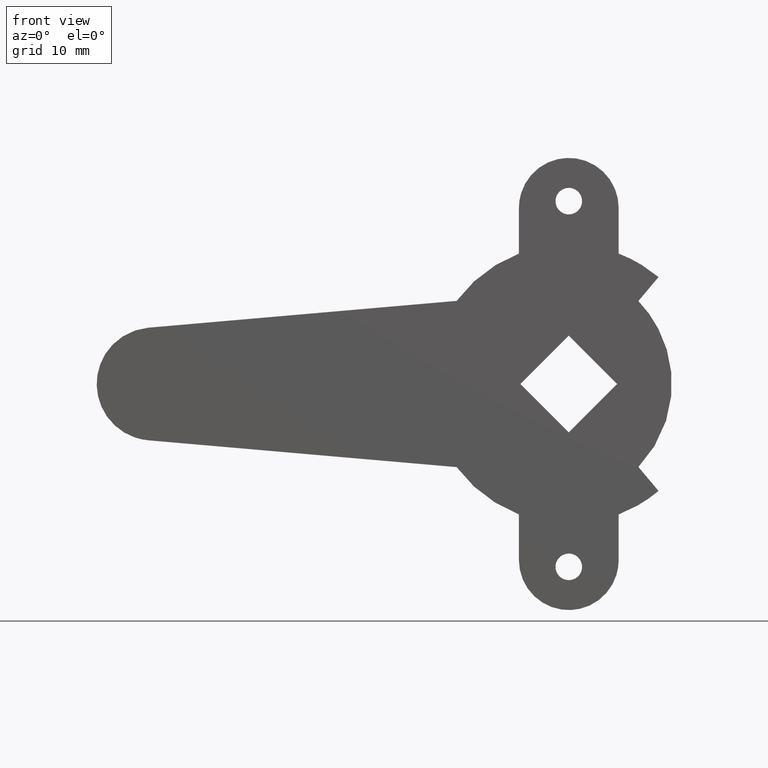
[diagram: clean part render]
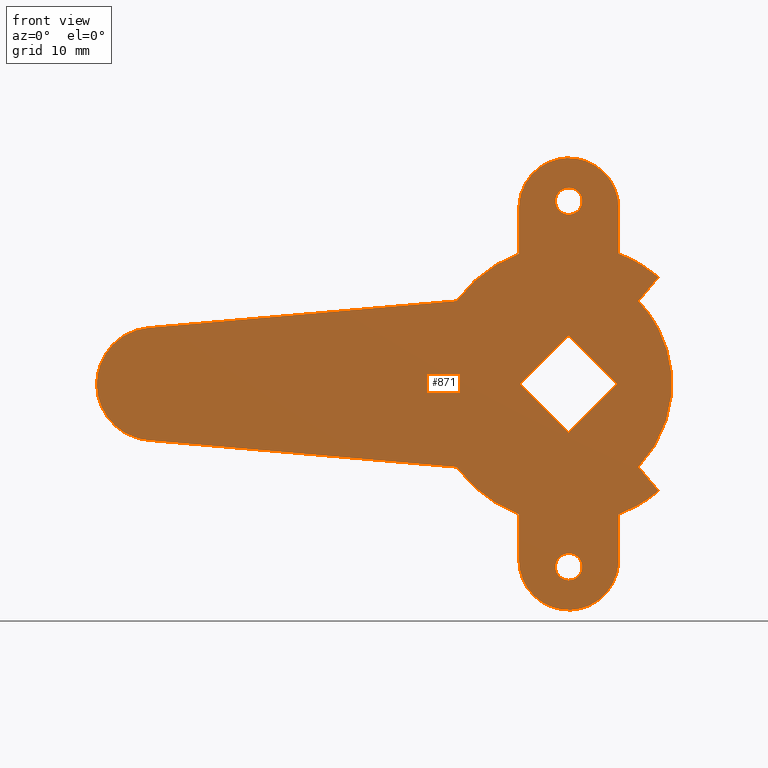
[diagram: same view with one face highlighted and labeled with its STEP entity id]
A machine part, front view. The second image highlights one B-rep face of the part: STEP entity #871.
In plain terms, the highlighted face is a freeform B-spline surface patch.
Its self-contained STEP definition (entity closure, byte-faithful):
#96=CARTESIAN_POINT('',(1.993834667457113,-3.199998000000035,27.343081808428138));
#97=VERTEX_POINT('',#96);
#103=CARTESIAN_POINT('',(0.0,-3.199998000000035,29.500000000000000));
#104=VERTEX_POINT('',#103);
#105=CARTESIAN_POINT('',(1.993834667457112,-3.199998000000035,27.343081808428135));
#106=CARTESIAN_POINT('',(2.0,-3.199998000000035,27.421419785867954));
#107=CARTESIAN_POINT('',(2.0,-3.199998000000035,27.500000000000000));
#108=CARTESIAN_POINT('',(2.000000000000000,-3.199998000000036,29.499999999999996));
#109=CARTESIAN_POINT('',(0.0,-3.199998000000035,29.500000000000000));
#117=(BOUNDED_CURVE()B_SPLINE_CURVE(2,(#105,#106,#107,#108,#109),.UNSPECIFIED.,.F.,.U.)B_SPLINE_CURVE_WITH_KNOTS((3,2,3),(0.736331300612791,0.750000000000000,1.0),.UNSPECIFIED.)CURVE()GEOMETRIC_REPRESENTATION_ITEM()RATIONAL_B_SPLINE_CURVE((0.969723356130127,0.983986122557947,1.0,0.707106781186548,1.0))REPRESENTATION_ITEM(''));
#118=EDGE_CURVE('',#97,#104,#117,.T.);
#120=CARTESIAN_POINT('',(-1.993834667457113,-3.199998000000035,27.656918191571862));
#121=VERTEX_POINT('',#120);
#122=CARTESIAN_POINT('',(0.0,-3.199998000000035,29.500000000000000));
#123=CARTESIAN_POINT('',(-1.848780983100313,-3.199998000000035,29.499999999999993));
#124=CARTESIAN_POINT('',(-1.993834667457113,-3.199998000000035,27.656918191571858));
#132=(BOUNDED_CURVE()B_SPLINE_CURVE(2,(#122,#123,#124),.UNSPECIFIED.,.F.,.U.)B_SPLINE_CURVE_WITH_KNOTS((3,3),(0.0,0.236331300612791),.UNSPECIFIED.)CURVE()GEOMETRIC_REPRESENTATION_ITEM()RATIONAL_B_SPLINE_CURVE((1.0,0.723120658628600,0.969723356130128))REPRESENTATION_ITEM(''));
#133=EDGE_CURVE('',#104,#121,#132,.T.);
#179=CARTESIAN_POINT('',(0.0,-3.199998000000035,25.500000000000000));
#180=VERTEX_POINT('',#179);
#181=CARTESIAN_POINT('',(-1.993834667457113,-3.199998000000035,27.656918191571858));
#182=CARTESIAN_POINT('',(-2.000000000000000,-3.199998000000035,27.578580214132046));
#183=CARTESIAN_POINT('',(-2.0,-3.199998000000035,27.500000000000000));
#184=CARTESIAN_POINT('',(-2.000000000000000,-3.199998000000036,25.500000000000007));
#185=CARTESIAN_POINT('',(0.0,-3.199998000000035,25.500000000000000));
#193=(BOUNDED_CURVE()B_SPLINE_CURVE(2,(#181,#182,#183,#184,#185),.UNSPECIFIED.,.F.,.U.)B_SPLINE_CURVE_WITH_KNOTS((3,2,3),(0.236331300612791,0.250000000000000,0.500000000000000),.UNSPECIFIED.)CURVE()GEOMETRIC_REPRESENTATION_ITEM()RATIONAL_B_SPLINE_CURVE((0.969723356130128,0.983986122557948,1.0,0.707106781186548,1.0))REPRESENTATION_ITEM(''));
#194=EDGE_CURVE('',#121,#180,#193,.T.);
#196=CARTESIAN_POINT('',(0.0,-3.199998000000035,25.500000000000000));
#197=CARTESIAN_POINT('',(1.848780983100312,-3.199998000000035,25.499999999999996));
#198=CARTESIAN_POINT('',(1.993834667457112,-3.199998000000035,27.343081808428135));
#206=(BOUNDED_CURVE()B_SPLINE_CURVE(2,(#196,#197,#198),.UNSPECIFIED.,.F.,.U.)B_SPLINE_CURVE_WITH_KNOTS((3,3),(0.500000000000000,0.736331300612791),.UNSPECIFIED.)CURVE()GEOMETRIC_REPRESENTATION_ITEM()RATIONAL_B_SPLINE_CURVE((1.0,0.723120658628600,0.969723356130127))REPRESENTATION_ITEM(''));
#207=EDGE_CURVE('',#180,#97,#206,.T.);
#278=CARTESIAN_POINT('',(1.993834667457113,-3.199998000000035,-27.657218191571861));
#279=VERTEX_POINT('',#278);
#285=CARTESIAN_POINT('',(0.0,-3.199998000000035,-25.500299999999999));
#286=VERTEX_POINT('',#285);
#287=CARTESIAN_POINT('',(1.993834667457112,-3.199998000000035,-27.657218191571861));
#288=CARTESIAN_POINT('',(2.0,-3.199998000000035,-27.578880214132049));
#289=CARTESIAN_POINT('',(2.0,-3.199998000000035,-27.500299999999999));
#290=CARTESIAN_POINT('',(2.000000000000000,-3.199998000000036,-25.500299999999989));
#291=CARTESIAN_POINT('',(0.0,-3.199998000000035,-25.500299999999999));
#299=(BOUNDED_CURVE()B_SPLINE_CURVE(2,(#287,#288,#289,#290,#291),.UNSPECIFIED.,.F.,.U.)B_SPLINE_CURVE_WITH_KNOTS((3,2,3),(0.736331300612791,0.750000000000000,1.0),.UNSPECIFIED.)CURVE()GEOMETRIC_REPRESENTATION_ITEM()RATIONAL_B_SPLINE_CURVE((0.969723356130127,0.983986122557947,1.0,0.707106781186548,1.0))REPRESENTATION_ITEM(''));
#300=EDGE_CURVE('',#279,#286,#299,.T.);
#302=CARTESIAN_POINT('',(-1.993834667457113,-3.199998000000035,-27.343381808428141));
#303=VERTEX_POINT('',#302);
#304=CARTESIAN_POINT('',(0.0,-3.199998000000035,-25.500299999999999));
#305=CARTESIAN_POINT('',(-1.848780983100313,-3.199998000000035,-25.500299999999996));
#306=CARTESIAN_POINT('',(-1.993834667457113,-3.199998000000035,-27.343381808428138));
#314=(BOUNDED_CURVE()B_SPLINE_CURVE(2,(#304,#305,#306),.UNSPECIFIED.,.F.,.U.)B_SPLINE_CURVE_WITH_KNOTS((3,3),(0.0,0.236331300612791),.UNSPECIFIED.)CURVE()GEOMETRIC_REPRESENTATION_ITEM()RATIONAL_B_SPLINE_CURVE((1.0,0.723120658628600,0.969723356130128))REPRESENTATION_ITEM(''));
#315=EDGE_CURVE('',#286,#303,#314,.T.);
#361=CARTESIAN_POINT('',(0.0,-3.199998000000035,-29.500299999999999));
#362=VERTEX_POINT('',#361);
#363=CARTESIAN_POINT('',(-1.993834667457113,-3.199998000000035,-27.343381808428145));
#364=CARTESIAN_POINT('',(-2.000000000000000,-3.199998000000035,-27.421719785867946));
#365=CARTESIAN_POINT('',(-2.0,-3.199998000000035,-27.500299999999999));
#366=CARTESIAN_POINT('',(-2.000000000000000,-3.199998000000036,-29.500299999999999));
#367=CARTESIAN_POINT('',(0.0,-3.199998000000035,-29.500299999999999));
#375=(BOUNDED_CURVE()B_SPLINE_CURVE(2,(#363,#364,#365,#366,#367),.UNSPECIFIED.,.F.,.U.)B_SPLINE_CURVE_WITH_KNOTS((3,2,3),(0.236331300612791,0.250000000000000,0.500000000000000),.UNSPECIFIED.)CURVE()GEOMETRIC_REPRESENTATION_ITEM()RATIONAL_B_SPLINE_CURVE((0.969723356130128,0.983986122557948,1.0,0.707106781186548,1.0))REPRESENTATION_ITEM(''));
#376=EDGE_CURVE('',#303,#362,#375,.T.);
#378=CARTESIAN_POINT('',(0.0,-3.199998000000035,-29.500299999999999));
#379=CARTESIAN_POINT('',(1.848780983100312,-3.199998000000035,-29.500299999999999));
#380=CARTESIAN_POINT('',(1.993834667457112,-3.199998000000035,-27.657218191571861));
#388=(BOUNDED_CURVE()B_SPLINE_CURVE(2,(#378,#379,#380),.UNSPECIFIED.,.F.,.U.)B_SPLINE_CURVE_WITH_KNOTS((3,3),(0.500000000000000,0.736331300612791),.UNSPECIFIED.)CURVE()GEOMETRIC_REPRESENTATION_ITEM()RATIONAL_B_SPLINE_CURVE((1.0,0.723120658628600,0.969723356130127))REPRESENTATION_ITEM(''));
#389=EDGE_CURVE('',#362,#279,#388,.T.);
#640=CARTESIAN_POINT('',(-75.320867146757635,-3.199998000000080,37.396599868202770));
#641=CARTESIAN_POINT('',(19.820686301534451,-3.199998000000080,37.396599868202770));
#642=CARTESIAN_POINT('',(-75.320867146757635,-3.199998000000080,-37.396601692104902));
#643=CARTESIAN_POINT('',(19.820686301534451,-3.199998000000080,-37.396601692104902));
#644=B_SPLINE_SURFACE_WITH_KNOTS('',1,1,((#640,#642),(#641,#643)),.UNSPECIFIED.,.F.,.F.,.U.,(2,2),(2,2),(0.0,95.141553448292086),(0.0,74.793201560307665),.UNSPECIFIED.);
#645=CARTESIAN_POINT('',(-7.500000000000090,-3.199998000000035,19.615045245933000));
#646=VERTEX_POINT('',#645);
#647=CARTESIAN_POINT('',(-16.874539580484502,-3.199998000000035,12.499996557866019));
#648=VERTEX_POINT('',#647);
#649=CARTESIAN_POINT('',(-7.500000000000096,-3.199998000000035,19.615045245932990));
#650=CARTESIAN_POINT('',(-13.225728745875150,-3.199998000000035,17.425758142301799));
#651=CARTESIAN_POINT('',(-16.874539580484491,-3.199998000000035,12.499996557866019));
#659=(BOUNDED_CURVE()B_SPLINE_CURVE(2,(#649,#650,#651),.UNSPECIFIED.,.F.,.U.)CURVE()GEOMETRIC_REPRESENTATION_ITEM()QUASI_UNIFORM_CURVE()RATIONAL_B_SPLINE_CURVE((1.0,0.959938492992654,1.0))REPRESENTATION_ITEM(''));
#660=EDGE_CURVE('',#646,#648,#659,.T.);
#661=ORIENTED_EDGE('',*,*,#660,.T.);
#662=CARTESIAN_POINT('',(-63.236600000000003,-3.199998000000035,8.468099999999890));
#663=VERTEX_POINT('',#662);
#664=CARTESIAN_POINT('',(-16.874539580484502,-3.199998000000035,12.499996557866019));
#665=CARTESIAN_POINT('',(-63.236600000000003,-3.199998000000035,8.468099999999890));
#666=QUASI_UNIFORM_CURVE('',1,(#664,#665),.UNSPECIFIED.,.F.,.U.);
#667=EDGE_CURVE('',#648,#663,#666,.T.);
#668=ORIENTED_EDGE('',*,*,#667,.T.);
#669=CARTESIAN_POINT('',(-63.236599818682187,-3.199998000000035,-8.468000015768769));
#670=VERTEX_POINT('',#669);
#671=CARTESIAN_POINT('',(-63.236600000000003,-3.199998000000035,8.468099999999895));
#672=CARTESIAN_POINT('',(-71.000184022108911,-3.199998000000036,7.792936570846801));
#673=CARTESIAN_POINT('',(-71.000183938678305,-3.199998000000035,0.000049908998665));
#674=CARTESIAN_POINT('',(-71.000183855247698,-3.199998000000036,-7.792836752849468));
#675=CARTESIAN_POINT('',(-63.236599818682187,-3.199998000000035,-8.468000015768780));
#683=(BOUNDED_CURVE()B_SPLINE_CURVE(2,(#671,#672,#673,#674,#675),.UNSPECIFIED.,.F.,.U.)B_SPLINE_CURVE_WITH_KNOTS((3,2,3),(0.0,0.500000000000000,1.0),.UNSPECIFIED.)CURVE()GEOMETRIC_REPRESENTATION_ITEM()RATIONAL_B_SPLINE_CURVE((1.0,0.737101897522884,1.0,0.737101897522884,1.0))REPRESENTATION_ITEM(''));
#684=EDGE_CURVE('',#663,#670,#683,.T.);
#685=ORIENTED_EDGE('',*,*,#684,.T.);
#686=CARTESIAN_POINT('',(-16.874539580552000,-3.199998000000035,-12.499996557774880));
#687=VERTEX_POINT('',#686);
#688=CARTESIAN_POINT('',(-63.236599818682187,-3.199998000000035,-8.468000015768769));
#689=CARTESIAN_POINT('',(-16.874539580552000,-3.199998000000035,-12.499996557774880));
#690=QUASI_UNIFORM_CURVE('',1,(#688,#689),.UNSPECIFIED.,.F.,.U.);
#691=EDGE_CURVE('',#670,#687,#690,.T.);
#692=ORIENTED_EDGE('',*,*,#691,.T.);
#693=CARTESIAN_POINT('',(-7.500000000000000,-3.199998000000035,-19.615045245933000));
#694=VERTEX_POINT('',#693);
#695=CARTESIAN_POINT('',(-16.874539580552000,-3.199998000000035,-12.499996557774880));
#696=CARTESIAN_POINT('',(-13.225728745932608,-3.199998000000034,-17.425758142279864));
#697=CARTESIAN_POINT('',(-7.500000000000012,-3.199998000000035,-19.615045245933029));
#705=(BOUNDED_CURVE()B_SPLINE_CURVE(2,(#695,#696,#697),.UNSPECIFIED.,.F.,.U.)CURVE()GEOMETRIC_REPRESENTATION_ITEM()QUASI_UNIFORM_CURVE()RATIONAL_B_SPLINE_CURVE((1.0,0.959938492991896,1.0))REPRESENTATION_ITEM(''));
#706=EDGE_CURVE('',#687,#694,#705,.T.);
#707=ORIENTED_EDGE('',*,*,#706,.T.);
#708=CARTESIAN_POINT('',(-7.500000000000090,-3.199998000000035,-26.500000000000000));
#709=VERTEX_POINT('',#708);
#710=CARTESIAN_POINT('',(-7.500000000000000,-3.199998000000035,-19.615045245933000));
#711=CARTESIAN_POINT('',(-7.500000000000090,-3.199998000000035,-26.500000000000000));
#712=QUASI_UNIFORM_CURVE('',1,(#710,#711),.UNSPECIFIED.,.F.,.U.);
#713=EDGE_CURVE('',#694,#709,#712,.T.);
#714=ORIENTED_EDGE('',*,*,#713,.T.);
#715=CARTESIAN_POINT('',(7.500000000000000,-3.199998000000035,-26.500000000000000));
#716=VERTEX_POINT('',#715);
#717=CARTESIAN_POINT('',(-7.500000000000000,-3.199998000000035,-26.500000000000000));
#718=CARTESIAN_POINT('',(-7.500000000000000,-3.199998000000035,-34.000000000000014));
#719=CARTESIAN_POINT('',(0.0,-3.199998000000035,-34.0));
#720=CARTESIAN_POINT('',(7.500000000000000,-3.199998000000035,-34.000000000000014));
#721=CARTESIAN_POINT('',(7.500000000000000,-3.199998000000035,-26.500000000000000));
#729=(BOUNDED_CURVE()B_SPLINE_CURVE(2,(#717,#718,#719,#720,#721),.UNSPECIFIED.,.F.,.U.)B_SPLINE_CURVE_WITH_KNOTS((3,2,3),(0.0,0.500000000000000,1.0),.UNSPECIFIED.)CURVE()GEOMETRIC_REPRESENTATION_ITEM()RATIONAL_B_SPLINE_CURVE((1.0,0.707106781186547,1.0,0.707106781186547,1.0))REPRESENTATION_ITEM(''));
#730=EDGE_CURVE('',#709,#716,#729,.T.);
#731=ORIENTED_EDGE('',*,*,#730,.T.);
#732=CARTESIAN_POINT('',(7.500000000000000,-3.199998000000035,-19.615045245933050));
#733=VERTEX_POINT('',#732);
#734=CARTESIAN_POINT('',(7.500000000000000,-3.199998000000035,-26.500000000000000));
#735=CARTESIAN_POINT('',(7.500000000000000,-3.199998000000035,-19.615045245933050));
#736=QUASI_UNIFORM_CURVE('',1,(#734,#735),.UNSPECIFIED.,.F.,.U.);
#737=EDGE_CURVE('',#716,#733,#736,.T.);
#738=ORIENTED_EDGE('',*,*,#737,.T.);
#739=CARTESIAN_POINT('',(13.498591527856259,-3.199998000000035,-16.086889903399200));
#740=VERTEX_POINT('',#739);
#741=CARTESIAN_POINT('',(7.499999999999990,-3.199998000000035,-19.615045245933040));
#742=CARTESIAN_POINT('',(10.795693741490979,-3.199998000000035,-18.354905248738419));
#743=CARTESIAN_POINT('',(13.498591527856259,-3.199998000000035,-16.086889903399200));
#751=(BOUNDED_CURVE()B_SPLINE_CURVE(2,(#741,#742,#743),.UNSPECIFIED.,.F.,.U.)CURVE()GEOMETRIC_REPRESENTATION_ITEM()QUASI_UNIFORM_CURVE()RATIONAL_B_SPLINE_CURVE((1.0,0.986176858210247,1.0))REPRESENTATION_ITEM(''));
#752=EDGE_CURVE('',#733,#740,#751,.T.);
#753=ORIENTED_EDGE('',*,*,#752,.T.);
#754=CARTESIAN_POINT('',(10.471594131394641,-3.199998000000035,-12.479493006142739));
#755=VERTEX_POINT('',#754);
#756=CARTESIAN_POINT('',(13.498591527856259,-3.199998000000035,-16.086889903399200));
#757=CARTESIAN_POINT('',(10.471594131394641,-3.199998000000035,-12.479493006142739));
#758=QUASI_UNIFORM_CURVE('',1,(#756,#757),.UNSPECIFIED.,.F.,.U.);
#759=EDGE_CURVE('',#740,#755,#758,.T.);
#760=ORIENTED_EDGE('',*,*,#759,.T.);
#761=CARTESIAN_POINT('',(10.471549311861420,-3.199998000000035,12.479539592867400));
#762=VERTEX_POINT('',#761);
#763=CARTESIAN_POINT('',(10.471594131394641,-3.199998000000035,-12.479493006142750));
#764=CARTESIAN_POINT('',(22.477697919114419,-3.199998000000035,0.000044853050978));
#765=CARTESIAN_POINT('',(10.471549311861430,-3.199998000000035,12.479539592867400));
#773=(BOUNDED_CURVE()B_SPLINE_CURVE(2,(#763,#764,#765),.UNSPECIFIED.,.F.,.U.)CURVE()GEOMETRIC_REPRESENTATION_ITEM()QUASI_UNIFORM_CURVE()RATIONAL_B_SPLINE_CURVE((1.0,0.720642873424946,1.0))REPRESENTATION_ITEM(''));
#774=EDGE_CURVE('',#755,#762,#773,.T.);
#775=ORIENTED_EDGE('',*,*,#774,.T.);
#776=CARTESIAN_POINT('',(13.498542287232841,-3.199998000000035,16.086931221329500));
#777=VERTEX_POINT('',#776);
#778=CARTESIAN_POINT('',(10.471549311861420,-3.199998000000035,12.479539592867400));
#779=CARTESIAN_POINT('',(13.498542287232841,-3.199998000000035,16.086931221329500));
#780=QUASI_UNIFORM_CURVE('',1,(#778,#779),.UNSPECIFIED.,.F.,.U.);
#781=EDGE_CURVE('',#762,#777,#780,.T.);
#782=ORIENTED_EDGE('',*,*,#781,.T.);
#783=CARTESIAN_POINT('',(7.500000000000000,-3.199998000000035,19.615045245933050));
#784=VERTEX_POINT('',#783);
#785=CARTESIAN_POINT('',(13.498542287232860,-3.199998000000035,16.086931221329511));
#786=CARTESIAN_POINT('',(10.795662874059836,-3.199998000000035,18.354917051195695));
#787=CARTESIAN_POINT('',(7.499999999999997,-3.199998000000035,19.615045245933040));
#795=(BOUNDED_CURVE()B_SPLINE_CURVE(2,(#785,#786,#787),.UNSPECIFIED.,.F.,.U.)CURVE()GEOMETRIC_REPRESENTATION_ITEM()QUASI_UNIFORM_CURVE()RATIONAL_B_SPLINE_CURVE((1.0,0.986177111799744,1.0))REPRESENTATION_ITEM(''));
#796=EDGE_CURVE('',#777,#784,#795,.T.);
#797=ORIENTED_EDGE('',*,*,#796,.T.);
#798=CARTESIAN_POINT('',(7.500000000000000,-3.199998000000035,26.500000000000000));
#799=VERTEX_POINT('',#798);
#800=CARTESIAN_POINT('',(7.500000000000000,-3.199998000000035,19.615045245933050));
#801=CARTESIAN_POINT('',(7.500000000000000,-3.199998000000035,26.500000000000000));
#802=QUASI_UNIFORM_CURVE('',1,(#800,#801),.UNSPECIFIED.,.F.,.U.);
#803=EDGE_CURVE('',#784,#799,#802,.T.);
#804=ORIENTED_EDGE('',*,*,#803,.T.);
#805=CARTESIAN_POINT('',(-7.500000000000000,-3.199998000000035,26.500000000000000));
#806=VERTEX_POINT('',#805);
#807=CARTESIAN_POINT('',(7.500000000000000,-3.199998000000035,26.500000000000000));
#808=CARTESIAN_POINT('',(7.500000000000000,-3.199998000000035,34.000000000000014));
#809=CARTESIAN_POINT('',(0.0,-3.199998000000035,34.0));
#810=CARTESIAN_POINT('',(-7.500000000000000,-3.199998000000035,34.000000000000014));
#811=CARTESIAN_POINT('',(-7.500000000000000,-3.199998000000035,26.500000000000000));
#819=(BOUNDED_CURVE()B_SPLINE_CURVE(2,(#807,#808,#809,#810,#811),.UNSPECIFIED.,.F.,.U.)B_SPLINE_CURVE_WITH_KNOTS((3,2,3),(0.0,0.500000000000000,1.0),.UNSPECIFIED.)CURVE()GEOMETRIC_REPRESENTATION_ITEM()RATIONAL_B_SPLINE_CURVE((1.0,0.707106781186547,1.0,0.707106781186547,1.0))REPRESENTATION_ITEM(''));
#820=EDGE_CURVE('',#799,#806,#819,.T.);
#821=ORIENTED_EDGE('',*,*,#820,.T.);
#822=CARTESIAN_POINT('',(-7.500000000000000,-3.199998000000035,26.500000000000000));
#823=CARTESIAN_POINT('',(-7.500000000000090,-3.199998000000035,19.615045245933000));
#824=QUASI_UNIFORM_CURVE('',1,(#822,#823),.UNSPECIFIED.,.F.,.U.);
#825=EDGE_CURVE('',#806,#646,#824,.T.);
#826=ORIENTED_EDGE('',*,*,#825,.T.);
#827=EDGE_LOOP('',(#661,#668,#685,#692,#707,#714,#731,#738,#753,#760,#775,#782,#797,#804,#821,#826));
#828=FACE_OUTER_BOUND('',#827,.T.);
#829=CARTESIAN_POINT('',(7.283199999999800,-3.199998000000035,0.0));
#830=VERTEX_POINT('',#829);
#831=CARTESIAN_POINT('',(0.0,-3.199998000000035,-7.283200000000110));
#832=VERTEX_POINT('',#831);
#833=CARTESIAN_POINT('',(7.283199999999800,-3.199998000000035,0.0));
#834=CARTESIAN_POINT('',(0.0,-3.199998000000035,-7.283200000000110));
#835=QUASI_UNIFORM_CURVE('',1,(#833,#834),.UNSPECIFIED.,.F.,.U.);
#836=EDGE_CURVE('',#830,#832,#835,.T.);
#837=ORIENTED_EDGE('',*,*,#836,.T.);
#838=CARTESIAN_POINT('',(-7.283200000000000,-3.199998000000035,0.0));
#839=VERTEX_POINT('',#838);
#840=CARTESIAN_POINT('',(0.0,-3.199998000000035,-7.283200000000110));
#841=CARTESIAN_POINT('',(-7.283200000000000,-3.199998000000035,0.0));
#842=QUASI_UNIFORM_CURVE('',1,(#840,#841),.UNSPECIFIED.,.F.,.U.);
#843=EDGE_CURVE('',#832,#839,#842,.T.);
#844=ORIENTED_EDGE('',*,*,#843,.T.);
#845=CARTESIAN_POINT('',(0.0,-3.199998000000035,7.283199999999890));
#846=VERTEX_POINT('',#845);
#847=CARTESIAN_POINT('',(-7.283200000000000,-3.199998000000035,0.0));
#848=CARTESIAN_POINT('',(0.0,-3.199998000000035,7.283199999999890));
#849=QUASI_UNIFORM_CURVE('',1,(#847,#848),.UNSPECIFIED.,.F.,.U.);
#850=EDGE_CURVE('',#839,#846,#849,.T.);
#851=ORIENTED_EDGE('',*,*,#850,.T.);
#852=CARTESIAN_POINT('',(0.0,-3.199998000000035,7.283199999999890));
#853=CARTESIAN_POINT('',(7.283199999999800,-3.199998000000035,0.0));
#854=QUASI_UNIFORM_CURVE('',1,(#852,#853),.UNSPECIFIED.,.F.,.U.);
#855=EDGE_CURVE('',#846,#830,#854,.T.);
#856=ORIENTED_EDGE('',*,*,#855,.T.);
#857=EDGE_LOOP('',(#837,#844,#851,#856));
#858=FACE_BOUND('',#857,.T.);
#859=ORIENTED_EDGE('',*,*,#389,.F.);
#860=ORIENTED_EDGE('',*,*,#376,.F.);
#861=ORIENTED_EDGE('',*,*,#315,.F.);
#862=ORIENTED_EDGE('',*,*,#300,.F.);
#863=EDGE_LOOP('',(#859,#860,#861,#862));
#864=FACE_BOUND('',#863,.T.);
#865=ORIENTED_EDGE('',*,*,#207,.F.);
#866=ORIENTED_EDGE('',*,*,#194,.F.);
#867=ORIENTED_EDGE('',*,*,#133,.F.);
#868=ORIENTED_EDGE('',*,*,#118,.F.);
#869=EDGE_LOOP('',(#865,#866,#867,#868));
#870=FACE_BOUND('',#869,.T.);
#871=ADVANCED_FACE('',(#828,#858,#864,#870),#644,.F.);